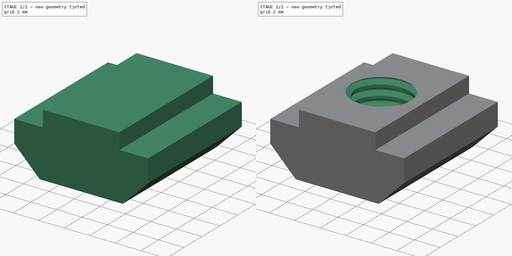
[diagram: build sequence overview — one tinted view per stage of 2, left to right]
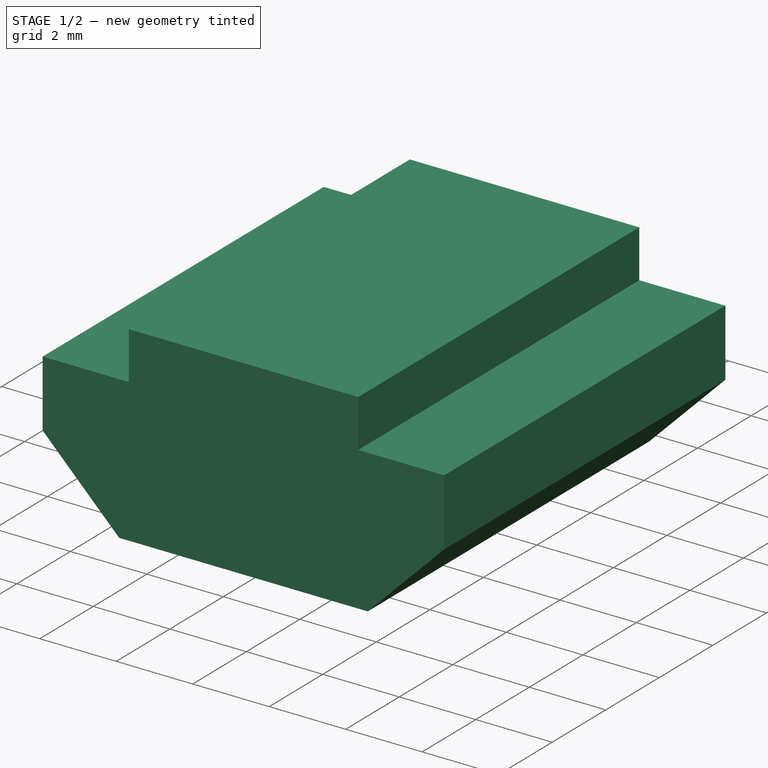
[diagram: stage 1 of 2 — iso view after this stage's code; geometry added in this stage tinted green]
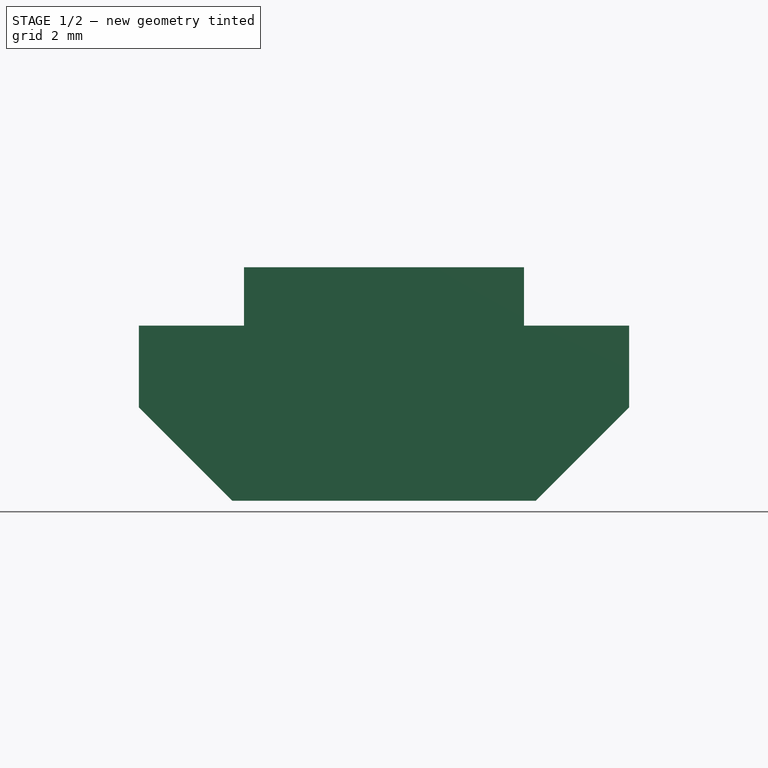
[diagram: stage 1 of 2 — front view after this stage's code; geometry added in this stage tinted green]
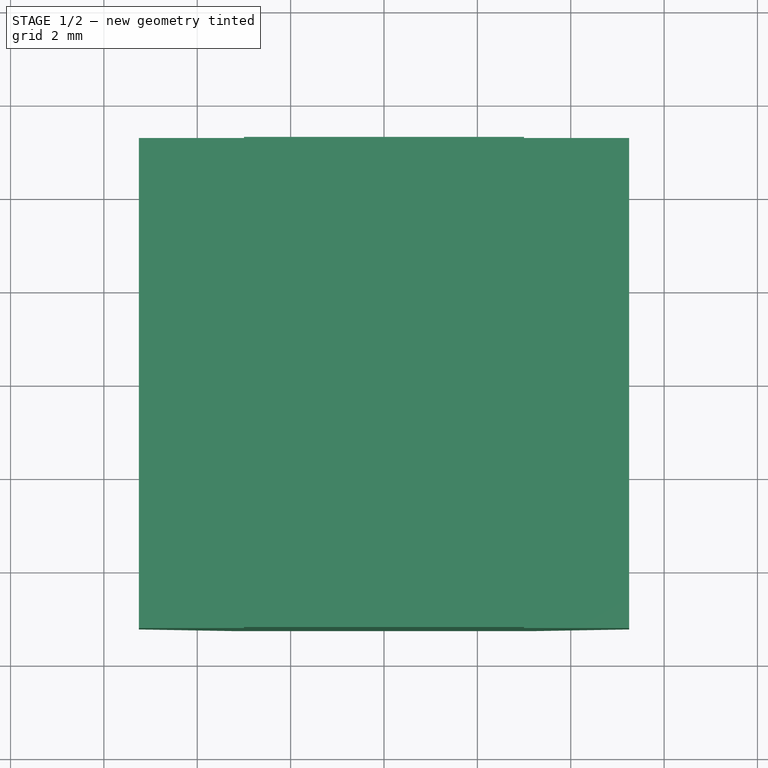
[diagram: stage 1 of 2 — top view after this stage's code; geometry added in this stage tinted green]
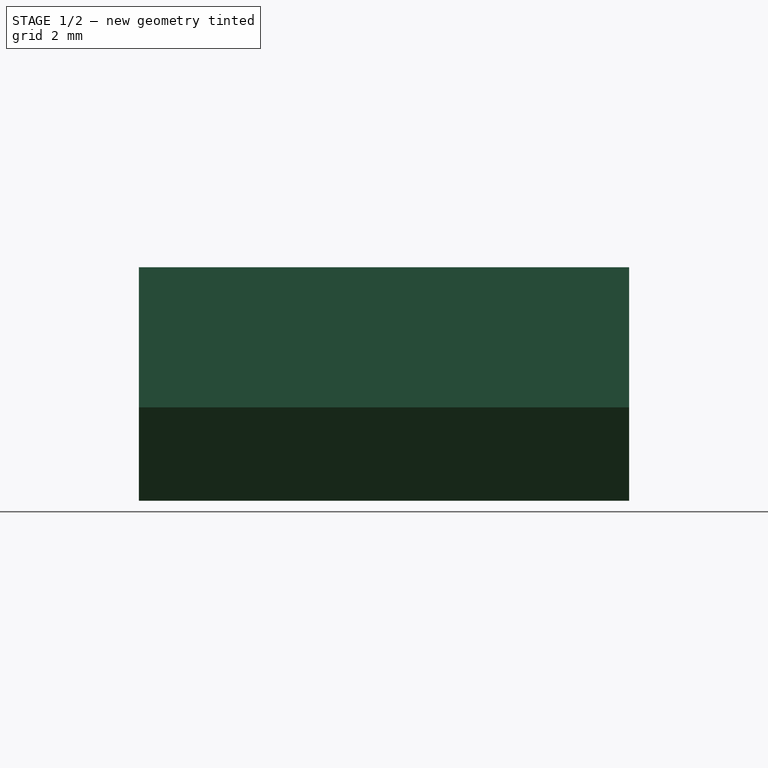
[diagram: stage 1 of 2 — right view after this stage's code; geometry added in this stage tinted green]
FCSTD DOCUMENT  (FreeCAD 0.20R29177 (Git))
Label: T_type_square_nut
Comment: Data from: https://ae01.alicdn.com/kf/Hc68182f0d5e04aa099db034996f55869f.jpg
License: Creative Commons Attribution
LicenseURL: http://creativecommons.org/licenses/by/4.0/
objects: Sketcher::SketchObject×2, Spreadsheet::Sheet×1, PartDesign::Pad×1, PartDesign::Chamfer×1, PartDesign::Hole×1, PartDesign::Body×1, App::Part×1
note: 9 computed .brp shape members not serialized (recipe doc carries the construction recipe); baked Part::Feature solids carry a one-line shape summary decoded from their .brp

FEATURE [Spreadsheet::Sheet] Spreadsheet
  cells = A1=Collection of T type Square Nuts to used wth T slot Aluminum profiles; A2=Data from: https://ae01.alicdn.com/kf/Hc68182f0d5e04aa099db034996f55869f.jpg; A5=Model; B5=Width; C5=Height; D5=Length; E5=Slot width; F5=Aux height; G5=Chamfer; H5=Hole size; A6==hiddenref(Part.Model.String); B6(W_dim)==.B9; C6(H_dim)==.C9; D6(L_dim)==.D9; E6(SW_dim)==.E9; F6(auxH_dim)==.F9; G6(chamf)==.G9; H6(hole)==.H9; A7=20S-M3; B7=10.5; C7=5; D7=10.5; E7=6; F7==0.25 * C7; G7==0.4 * C7; H7=M3; A8=20S-M4; B8=10.5; C8=5; D8=10.5; E8=6; F8==0.25 * C8; G8==0.4 * C8; H8=M4; A9=20S-M5; B9=10.5; C9=5; D9=10.5; E9=6; F9==0.25 * C9; G9==0.4 * C9; H9=M5; A10=20S-M6; B10=10.5; C10=5; D10=10.5; E10=6; F10==0.25 * C10; G10==0.4 * C10; H10=M6; A11=30S-M4; B11=16; C11=6; D11=16; E11=8; F11==0.25 * C11; G11==0.4 * C11; H11=M4; A12=30S-M5; B12=16; C12=6; D12=16; E12=8; F12==0.25 * C12; G12==0.4 * C12; H12=M5; A13=30S-M6; B13=16; C13=6; D13=16; E13=8; F13==0.25 * C13; G13==0.4 * C13; H13=M6; A14=30S-M8; B14=16; C14=6; D14=16; E14=8; F14==0.25 * C14; G14==0.4 * C14; H14=M8; A15=40S-M4; B15=20; C15=10; D15=20; E15=8; F15==0.25 * C15; G15==0.4 * C15; H15=M4; A16=40S-M5; B16=20; C16=10; D16=20; E16=8; F16==0.25 * C16; G16==0.4 * C16; H16=M5; A17=40S-M6; B17=20; C17=10; D17=20; E17=8; F17==0.25 * C17; G17==0.4 * C17; H17=M6; A18=40S-M8; B18=20; C18=10; D18=20; E18=8; F18==0.25 * C18; G18==0.4 * C18; H18=M8; A19=45S-M4; B19=20; C19=10.5; D19=20; E19=10; F19==0.25 * C19; G19==0.4 * C19; H19=M4; A20=45S-M5; B20=20; C20=10.5; D20=20; E20=10; F20==0.25 * C20; G20==0.4 * C20; H20=M5; A21=45S-M6; B21=20; C21=10.5; D21=20; E21=10; F21==0.25 * C21; G21==0.4 * C21; H21=M6; A22=45S-M8; B22=20; C22=10.5; D22=20; E22=10; F22==0.25 * C22; G22==0.4 * C22; H22=M8; A23=45S-M10; B23=20; C23=10.5; D23=20; E23=10; F23==0.25 * C23; G23==0.4 * C23; H23=M10
  expr: .cells.Bind.B6.ZZ6 = tuple(.cells; <<B>> + str(hiddenref(Part.Model) + 7); <<ZZ>> + str(hiddenref(Part.Model) + 7))
FEATURE [Sketcher::SketchObject] Sketch
  FullyConstrained = true
  MapMode = 5
  Placement = pos=(0,0,0) rot=(1,0,0;1.5708rad)
  Support = -> [XZ_Plane001]
  expr: Constraints[19] = <<Spreadsheet>>.W_dim
  expr: Constraints[20] = <<Spreadsheet>>.H_dim
  expr: Constraints[21] = <<Spreadsheet>>.SW_dim
  expr: Constraints[22] = <<Spreadsheet>>.auxH_dim
  sketch-geometry (8):
    g0: LineSegment StartX=-5.25 StartY=0 StartZ=0 EndX=5.25 EndY=0 EndZ=0
    g1: LineSegment StartX=5.25 StartY=0 StartZ=0 EndX=5.25 EndY=3.75 EndZ=0
    g2: LineSegment StartX=5.25 StartY=3.75 StartZ=0 EndX=3 EndY=3.75 EndZ=0
    g3: LineSegment StartX=3 StartY=3.75 StartZ=0 EndX=3 EndY=5 EndZ=0
    g4: LineSegment StartX=3 StartY=5 StartZ=0 EndX=-3 EndY=5 EndZ=0
    g5: LineSegment StartX=-3 StartY=5 StartZ=0 EndX=-3 EndY=3.75 EndZ=0
    g6: LineSegment StartX=-3 StartY=3.75 StartZ=0 EndX=-5.25 EndY=3.75 EndZ=0
    g7: LineSegment StartX=-5.25 StartY=3.75 StartZ=0 EndX=-5.25 EndY=0 EndZ=0
  constraints (23):
    c: PointOnObject(g0,g-1)
    c: Coincident(g0,g1)
    c: Vertical(g1)
    c: Coincident(g1,g2)
    c: Horizontal(g2)
    c: Coincident(g2,g3)
    c: Vertical(g3)
    c: Coincident(g3,g4)
    c: Horizontal(g4)
    c: Coincident(g4,g5)
    c: Vertical(g5)
    c: Coincident(g5,g6)
    c: Horizontal(g6)
    c: Coincident(g6,g7)
    c: Vertical(g7)
    c: Coincident(g0,g7)
    c: Symmetric(g0,g0,g-1)
    c: Equal(g5,g3)
    c: Equal(g2,g6)
    c: DistanceX(g0,g0) = 10.5
    c: DistanceY(g0,g4) = 5
    c: DistanceX(g4,g4) = 6
    c: DistanceY(g3,g3) = 1.25
FEATURE [PartDesign::Pad] Pad
  Direction = (0,-1,-2e-16)
  Length = 10.5
  Length2 = 10
  Midplane = true
  Placement = pos=(0,0,0) rot=(1,0,0;1.5708rad)
  Profile = -> Sketch
  ReferenceAxis = -> Sketch [N_Axis]
  Type = 0
  expr: Length = <<Spreadsheet>>.L_dim
FEATURE [PartDesign::Chamfer] Chamfer
  Angle = 45
  Base = -> Pad [Edge1,Edge2]
  BaseFeature = -> Pad
  ChamferType = 0
  FlipDirection = false
  Placement = pos=(0,0,0) rot=(1,0,0;1.5708rad)
  Size = 2
  Size2 = 1
  SupportTransform = false
  UseAllEdges = false
  expr: Size = <<Spreadsheet>>.chamf
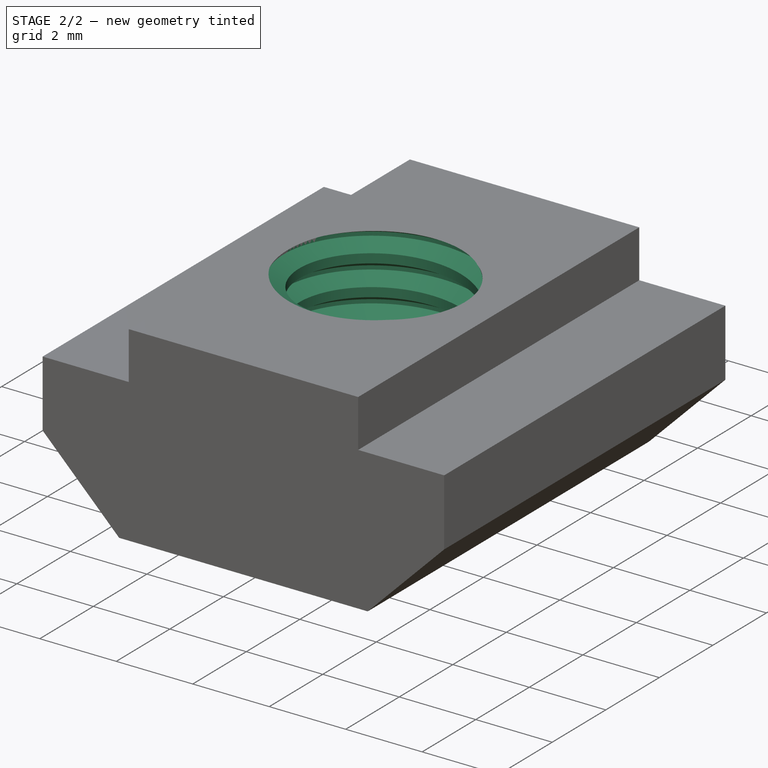
[diagram: stage 2 of 2 — iso view after this stage's code; geometry added in this stage tinted green]
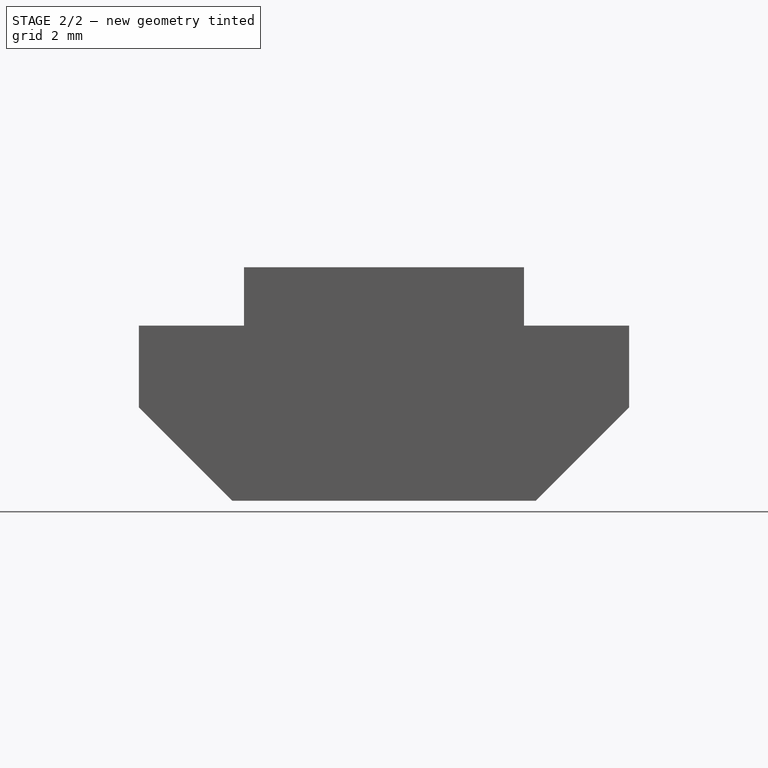
[diagram: stage 2 of 2 — front view after this stage's code; geometry added in this stage tinted green]
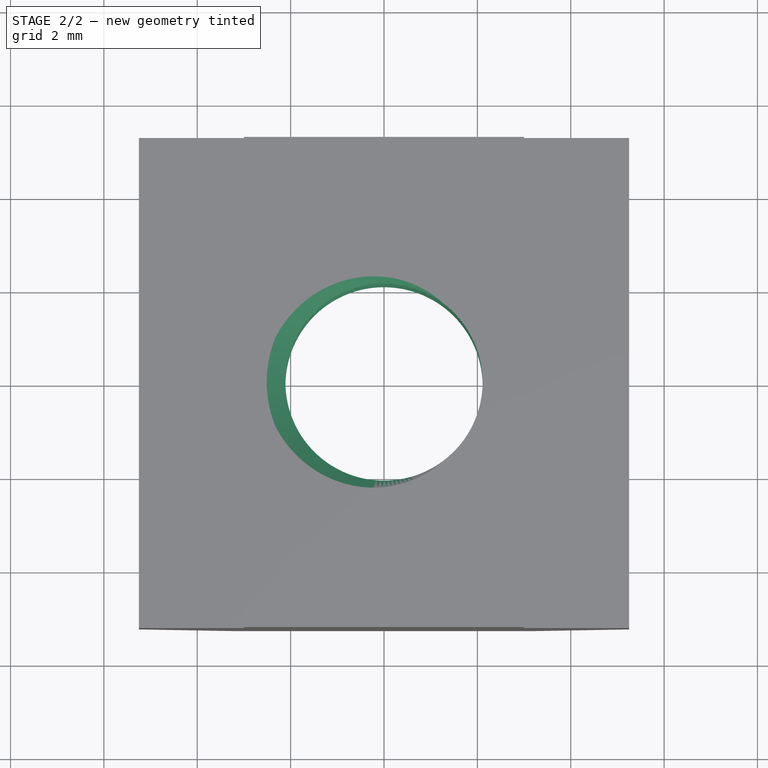
[diagram: stage 2 of 2 — top view after this stage's code; geometry added in this stage tinted green]
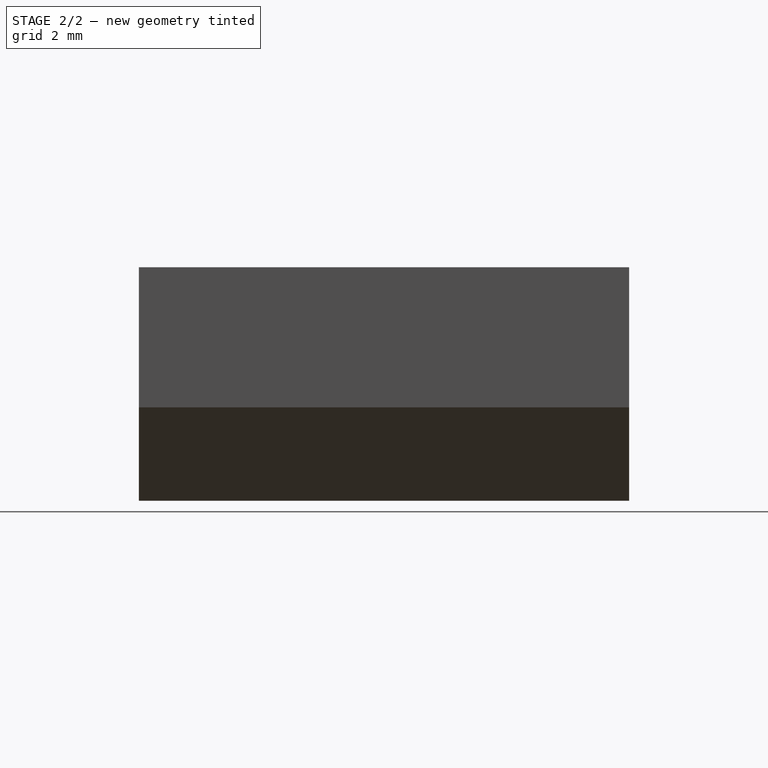
[diagram: stage 2 of 2 — right view after this stage's code; geometry added in this stage tinted green]
FEATURE [Sketcher::SketchObject] Sketch001
  FullyConstrained = true
  MapMode = 5
  Placement = pos=(0,-1.1e-15,5) rot=(0,0,1;3.14159rad)
  Support = -> [Chamfer]
  sketch-geometry (1):
    g0: Circle CenterX=0 CenterY=0 CenterZ=0 NormalX=0 NormalY=0 NormalZ=1 AngleXU=0 Radius=1
  constraints (2):
    c: Coincident(g0,g-1)
    c: Radius(g0) = 1
FEATURE [PartDesign::Hole] Hole
  BaseFeature = -> Chamfer
  CustomThreadClearance = 0
  Depth = 25
  DepthType = 0
  Diameter = 4.224
  DrillForDepth = false
  DrillPoint = 1
  DrillPointAngle = 118
  HoleCutCountersinkAngle = 90
  HoleCutCustomValues = false
  HoleCutDepth = 0
  HoleCutDiameter = 6.1
  HoleCutType = 0
  ModelThread = true
  Placement = pos=(0,0,0) rot=(1,0,0;1.5708rad)
  Profile = -> Sketch001
  Tapered = false
  TaperedAngle = 90
  ThreadClass = 0
  ThreadDepth = 25
  ThreadDepthType = 0
  ThreadDirection = 0
  ThreadFit = 0
  ThreadSize = 13
  ThreadType = 1
  Threaded = true
  UseCustomThreadClearance = false
  expr: ThreadSize = <<Spreadsheet>>.hole
FEATURE [PartDesign::Body] Body  label="Nut"
  Group = -> [Sketch,Pad,Chamfer,Sketch001,Hole]
  Origin = -> Origin001
  Tip = -> Hole
FEATURE [App::Part] Part  label="Square nut"
  Group = -> [Spreadsheet,Body]
  Model = 2
  Origin = -> Origin
  expr: .Model.Enum = Spreadsheet.cells[<<A7:|>>]
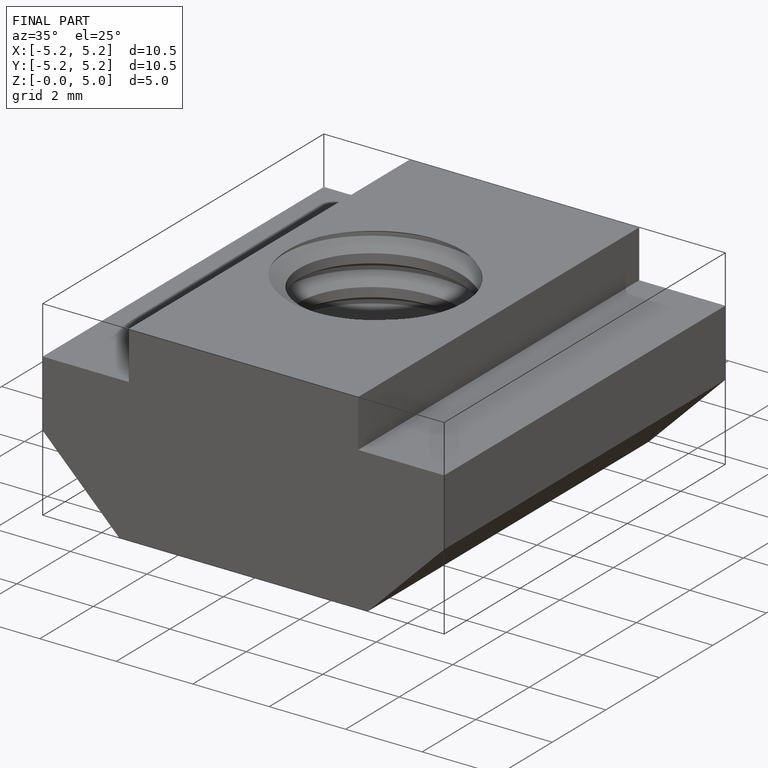
[diagram: finished part — iso view with bounding-box wireframe]
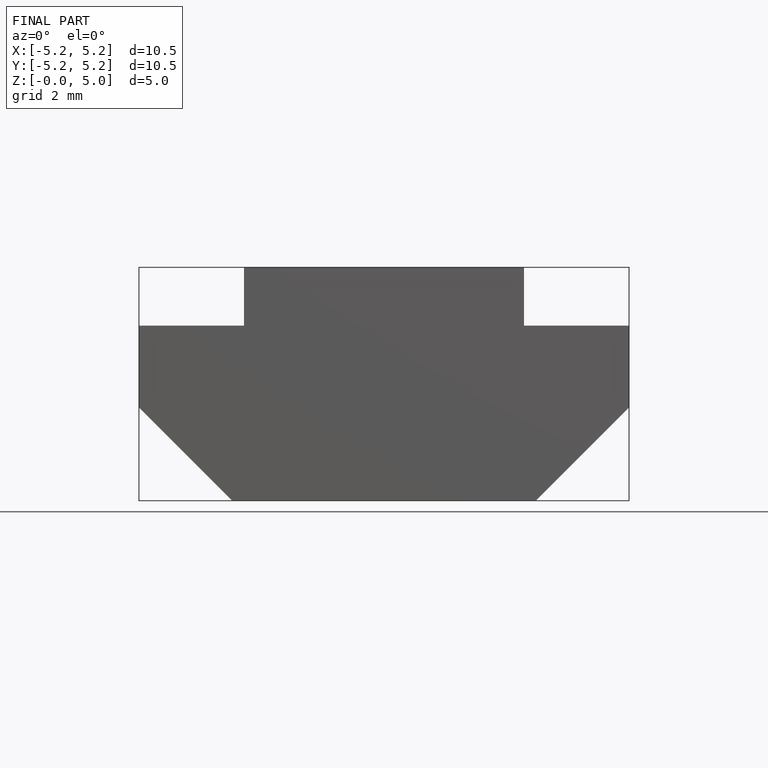
[diagram: finished part — front view with bounding-box wireframe]
